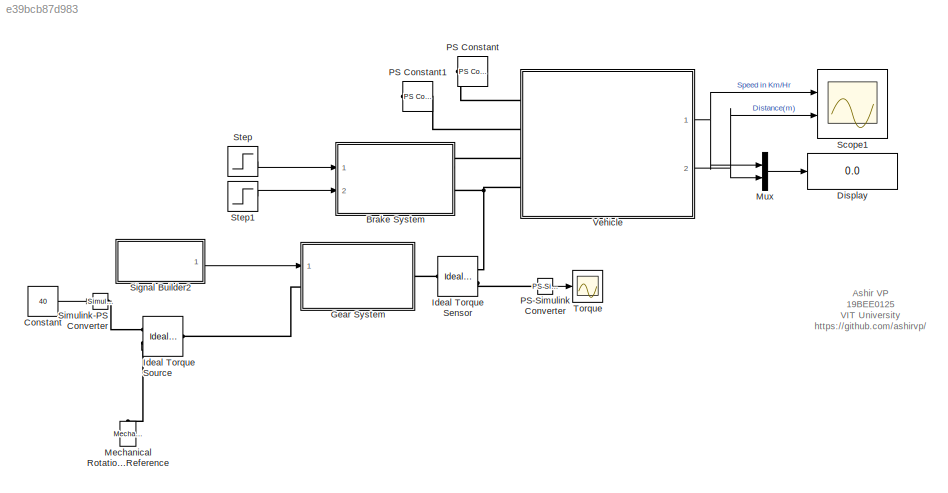
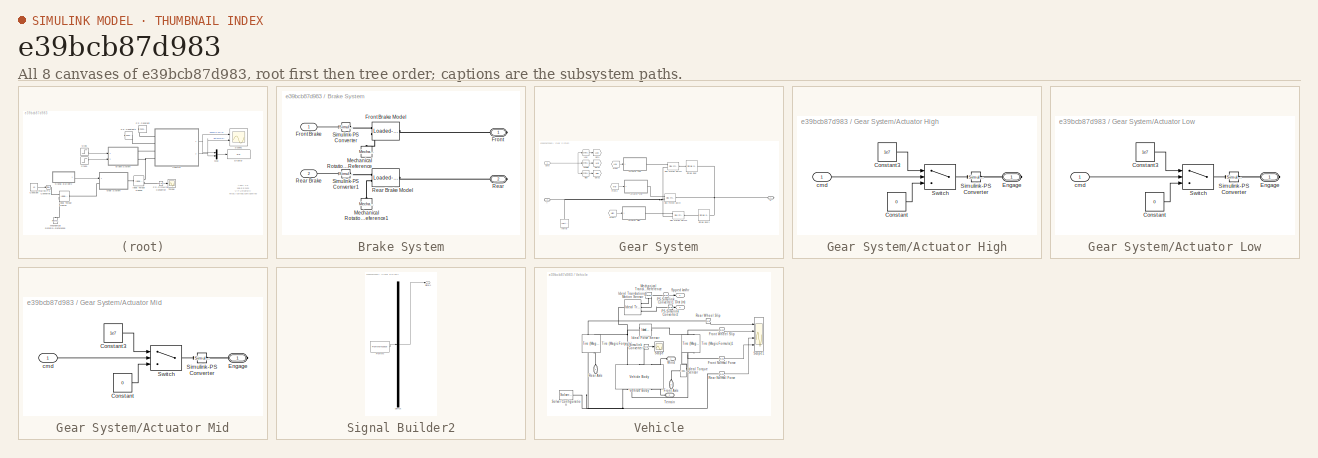
[diagram: thumbnail index - all 8 canvases of the model, root first then tree order]
MODEL slx_e39bcb87d983
KIND model
CONFIG AbsTol = auto
CONFIG EnableMultiTasking = off
CONFIG FixedStep = auto
CONFIG MaxStep = auto
CONFIG MinStep = auto
CONFIG RelTol = 1e-3
CONFIG SampleTimeConstraint = Unconstrained
CONFIG SolverName = VariableStepAuto
CONFIG StartTime = 0.0
CONFIG StopTime = 100
BLOCK [SubSystem] Brake System
  Ports = [2, 0, 0, 0, 0, 0, 2]
  RequestExecContextInheritance = off
BLOCK [PMIOPort] Brake System/Front
  Side = Right
BLOCK [Inport] Brake System/Front Brake
BLOCK [Reference] Brake System/Front Brake Model  REF=sdl_lib/Brakes & Detents/Rotational/Loaded-Contact
Rotational Friction
  Ports = [0, 0, 0, 0, 0, 2, 1]
  SourceBlock = sdl_lib/Brakes & Detents/Rotational/Loaded-Contact\nRotational Friction
  SourceProductBaseCode = LD
  SourceType = Loaded-Contact\nRotational Friction
BLOCK [Reference] Brake System/Mechanical Rotational Reference  REF=fl_lib/Mechanical/Rotational Elements/Mechanical
Rotational Reference
  NameLocation = right
  Ports = [0, 0, 0, 0, 0, 1]
  SourceBlock = fl_lib/Mechanical/Rotational Elements/Mechanical\nRotational Reference
  SourceProductBaseCode = SS
  SourceType = Mechanical\nRotational Reference
BLOCK [Reference] Brake System/Mechanical Rotational Reference1  REF=fl_lib/Mechanical/Rotational Elements/Mechanical
Rotational Reference
  NameLocation = right
  Ports = [0, 0, 0, 0, 0, 1]
  SourceBlock = fl_lib/Mechanical/Rotational Elements/Mechanical\nRotational Reference
  SourceProductBaseCode = SS
  SourceType = Mechanical\nRotational Reference
BLOCK [PMIOPort] Brake System/Rear
  Port = 2
  Side = Right
BLOCK [Inport] Brake System/Rear Brake
  Port = 2
BLOCK [Reference] Brake System/Rear Brake Model  REF=sdl_lib/Brakes & Detents/Rotational/Loaded-Contact
Rotational Friction
  Ports = [0, 0, 0, 0, 0, 2, 1]
  SourceBlock = sdl_lib/Brakes & Detents/Rotational/Loaded-Contact\nRotational Friction
  SourceProductBaseCode = LD
  SourceType = Loaded-Contact\nRotational Friction
BLOCK [Reference] Brake System/Simulink-PS Converter  REF=nesl_utility/Simulink-PS
Converter
  Ports = [1, 0, 0, 0, 0, 0, 1]
  SourceBlock = nesl_utility/Simulink-PS\nConverter
  SourceProductBaseCode = PW,SS
  SourceType = Simulink-PS\nConverter
BLOCK [Reference] Brake System/Simulink-PS Converter1  REF=nesl_utility/Simulink-PS
Converter
  Ports = [1, 0, 0, 0, 0, 0, 1]
  SourceBlock = nesl_utility/Simulink-PS\nConverter
  SourceProductBaseCode = PW,SS
  SourceType = Simulink-PS\nConverter
BLOCK [Constant] Constant
  Value = 40
BLOCK [Display] Display
  Decimation = 1
  Ports = [1]
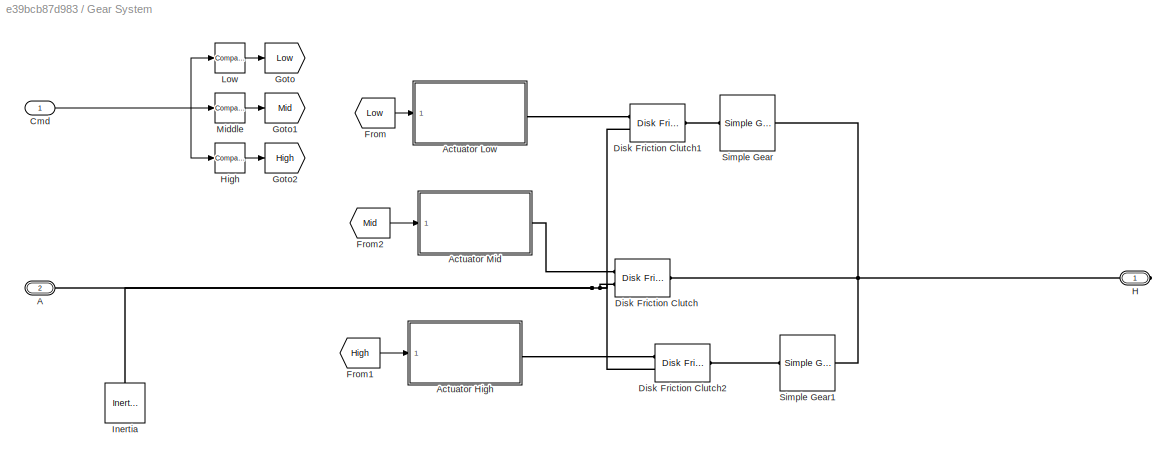
BLOCK [SubSystem] Gear System
  Ports = [1, 0, 0, 0, 0, 1, 1]
  RequestExecContextInheritance = off
BLOCK [PMIOPort] Gear System/A
  Port = 2
  Side = Left
BLOCK [SubSystem] Gear System/Actuator High
  Ports = [1, 0, 0, 0, 0, 0, 1]
  RequestExecContextInheritance = off
BLOCK [Constant] Gear System/Actuator High/Constant
  Value = 0
BLOCK [Constant] Gear System/Actuator High/Constant3
  Value = 1e7
BLOCK [PMIOPort] Gear System/Actuator High/Engage
  NameLocation = top
  Side = Right
BLOCK [Reference] Gear System/Actuator High/Simulink-PS Converter  REF=nesl_utility/Simulink-PS
Converter
  Ports = [1, 0, 0, 0, 0, 0, 1]
  SourceBlock = nesl_utility/Simulink-PS\nConverter
  SourceProductBaseCode = PW,SS
  SourceType = Simulink-PS\nConverter
BLOCK [Switch] Gear System/Actuator High/Switch
  Criteria = u2 > Threshold
  InputSameDT = off
  SaturateOnIntegerOverflow = off
BLOCK [Inport] Gear System/Actuator High/cmd
BLOCK [SubSystem] Gear System/Actuator Low
  Ports = [1, 0, 0, 0, 0, 0, 1]
  RequestExecContextInheritance = off
BLOCK [Constant] Gear System/Actuator Low/Constant
  Value = 0
BLOCK [Constant] Gear System/Actuator Low/Constant3
  Value = 1e7
BLOCK [PMIOPort] Gear System/Actuator Low/Engage
  NameLocation = top
  Side = Right
BLOCK [Reference] Gear System/Actuator Low/Simulink-PS Converter  REF=nesl_utility/Simulink-PS
Converter
  Ports = [1, 0, 0, 0, 0, 0, 1]
  SourceBlock = nesl_utility/Simulink-PS\nConverter
  SourceProductBaseCode = PW,SS
  SourceType = Simulink-PS\nConverter
BLOCK [Switch] Gear System/Actuator Low/Switch
  Criteria = u2 > Threshold
  InputSameDT = off
  SaturateOnIntegerOverflow = off
BLOCK [Inport] Gear System/Actuator Low/cmd
BLOCK [SubSystem] Gear System/Actuator Mid
  Ports = [1, 0, 0, 0, 0, 0, 1]
  RequestExecContextInheritance = off
BLOCK [Constant] Gear System/Actuator Mid/Constant
  Value = 0
BLOCK [Constant] Gear System/Actuator Mid/Constant3
  Value = 1e7
BLOCK [PMIOPort] Gear System/Actuator Mid/Engage
  NameLocation = top
  Side = Right
BLOCK [Reference] Gear System/Actuator Mid/Simulink-PS Converter  REF=nesl_utility/Simulink-PS
Converter
  Ports = [1, 0, 0, 0, 0, 0, 1]
  SourceBlock = nesl_utility/Simulink-PS\nConverter
  SourceProductBaseCode = PW,SS
  SourceType = Simulink-PS\nConverter
BLOCK [Switch] Gear System/Actuator Mid/Switch
  Criteria = u2 > Threshold
  InputSameDT = off
  SaturateOnIntegerOverflow = off
BLOCK [Inport] Gear System/Actuator Mid/cmd
BLOCK [Inport] Gear System/Cmd
BLOCK [Reference] Gear System/Disk Friction Clutch  REF=sdl_lib/Clutches/Disk Friction Clutch
  NameLocation = top
  Ports = [0, 0, 0, 0, 0, 2, 1]
  SourceBlock = sdl_lib/Clutches/Disk Friction Clutch
  SourceProductBaseCode = LD
  SourceType = Disk Friction Clutch
BLOCK [Reference] Gear System/Disk Friction Clutch1  REF=sdl_lib/Clutches/Disk Friction Clutch
  Ports = [0, 0, 0, 0, 0, 2, 1]
  SourceBlock = sdl_lib/Clutches/Disk Friction Clutch
  SourceProductBaseCode = LD
  SourceType = Disk Friction Clutch
BLOCK [Reference] Gear System/Disk Friction Clutch2  REF=sdl_lib/Clutches/Disk Friction Clutch
  Ports = [0, 0, 0, 0, 0, 2, 1]
  SourceBlock = sdl_lib/Clutches/Disk Friction Clutch
  SourceProductBaseCode = LD
  SourceType = Disk Friction Clutch
BLOCK [From] Gear System/From
  GotoTag = Low
BLOCK [From] Gear System/From1
  GotoTag = High
BLOCK [From] Gear System/From2
  GotoTag = Mid
BLOCK [Goto] Gear System/Goto
  GotoTag = Low
BLOCK [Goto] Gear System/Goto1
  GotoTag = Mid
BLOCK [Goto] Gear System/Goto2
  GotoTag = High
BLOCK [PMIOPort] Gear System/H
  Side = Right
BLOCK [Reference] Gear System/High  REF=simulink/Logic and Bit
Operations/Compare
To Constant
  Ports = [1, 1]
  SourceBlock = simulink/Logic and Bit\nOperations/Compare\nTo Constant
  SourceProductBaseCode = SL
  SourceType = Compare To Constant
BLOCK [Reference] Gear System/Inertia  REF=fl_lib/Mechanical/Rotational Elements/Inertia
  NameLocation = right
  Ports = [0, 0, 0, 0, 0, 1]
  SourceBlock = fl_lib/Mechanical/Rotational Elements/Inertia
  SourceProductBaseCode = SS
  SourceType = Inertia
BLOCK [Reference] Gear System/Low  REF=simulink/Logic and Bit
Operations/Compare
To Constant
  Ports = [1, 1]
  SourceBlock = simulink/Logic and Bit\nOperations/Compare\nTo Constant
  SourceProductBaseCode = SL
  SourceType = Compare To Constant
BLOCK [Reference] Gear System/Middle  REF=simulink/Logic and Bit
Operations/Compare
To Constant
  Ports = [1, 1]
  SourceBlock = simulink/Logic and Bit\nOperations/Compare\nTo Constant
  SourceProductBaseCode = SL
  SourceType = Compare To Constant
BLOCK [Reference] Gear System/Simple Gear  REF=sdl_lib/Gears/Simple Gear
  Ports = [0, 0, 0, 0, 0, 1, 1]
  SourceBlock = sdl_lib/Gears/Simple Gear
  SourceProductBaseCode = LD
  SourceType = Simple Gear
BLOCK [Reference] Gear System/Simple Gear1  REF=sdl_lib/Gears/Simple Gear
  Ports = [0, 0, 0, 0, 0, 1, 1]
  SourceBlock = sdl_lib/Gears/Simple Gear
  SourceProductBaseCode = LD
  SourceType = Simple Gear
BLOCK [Reference] Ideal Torque Sensor  REF=fl_lib/Mechanical/Mechanical Sensors/Ideal Torque Sensor
  Ports = [0, 0, 0, 0, 0, 1, 2]
  SourceBlock = fl_lib/Mechanical/Mechanical Sensors/Ideal Torque Sensor
  SourceProductBaseCode = SS
  SourceType = Ideal Torque Sensor
BLOCK [Reference] Ideal Torque Source  REF=fl_lib/Mechanical/Mechanical Sources/Ideal Torque Source
  Ports = [0, 0, 0, 0, 0, 1, 2]
  SourceBlock = fl_lib/Mechanical/Mechanical Sources/Ideal Torque Source
  SourceProductBaseCode = SS
  SourceType = Ideal Torque Source
BLOCK [Reference] Mechanical Rotational Reference  REF=fl_lib/Mechanical/Rotational Elements/Mechanical
Rotational Reference
  NameLocation = right
  Ports = [0, 0, 0, 0, 0, 1]
  SourceBlock = fl_lib/Mechanical/Rotational Elements/Mechanical\nRotational Reference
  SourceProductBaseCode = SS
  SourceType = Mechanical\nRotational Reference
BLOCK [Mux] Mux
  DisplayOption = bar
  Inputs = 2
  Ports = [2, 1]
BLOCK [Reference] PS Constant  REF=fl_lib/Physical Signals/Sources/PS Constant
  NameLocation = top
  Ports = [0, 0, 0, 0, 0, 0, 1]
  SourceBlock = fl_lib/Physical Signals/Sources/PS Constant
  SourceProductBaseCode = SS
  SourceType = PS Constant
BLOCK [Reference] PS Constant1  REF=fl_lib/Physical Signals/Sources/PS Constant
  NameLocation = top
  Ports = [0, 0, 0, 0, 0, 0, 1]
  SourceBlock = fl_lib/Physical Signals/Sources/PS Constant
  SourceProductBaseCode = SS
  SourceType = PS Constant
BLOCK [Reference] PS-Simulink Converter  REF=nesl_utility/PS-Simulink
Converter
  Ports = [0, 1, 0, 0, 0, 1]
  SourceBlock = nesl_utility/PS-Simulink\nConverter
  SourceProductBaseCode = PW,SS
  SourceType = PS-Simulink\nConverter
BLOCK [Scope] Scope1
  Floating = off
  NumInputPorts = 2
  Ports = [2]
  ScopeSpecificationString = Simulink.scopes.TimeScopeBlockCfg('CurrentConfiguration', extmgr.ConfigurationSet(extmgr.Configuration('Core','General UI',true,'FigureColor',[1 1 1]),extmgr.Configuration('Core','Source UI',true),extmgr.Configuration('Sources','WiredSimulink',true,'DataLoggingVariableName','ScopeData1'),extmgr.Configuration('Visuals','Time Domain',true,'SerializedDisplays',{struct('MinYLimReal','-5.79864','MaxYLi...<+3114ch>
BLOCK [SubSystem] Signal Builder2
  ClipboardFcn = sigbuilder_block('clipboard');
  CloseFcn = sigbuilder_block('close');
  ContinueFcn = sigbuilder_block('continue');
  CopyFcn = sigbuilder_block('copy');
  DeleteFcn = sigbuilder_block('delete');
  LoadFcn = sigbuilder_block('load');
  MaskHideContents = on
  ModelCloseFcn = sigbuilder_block('modelClose');
  NameChangeFcn = sigbuilder_block('namechange');
  OpenFcn = sigbuilder_block('open',[437.6 153 550.4 359.25 ]);
  PauseFcn = sigbuilder_block('pause');
  Ports = [0, 1]
  PreSaveFcn = sigbuilder_block('preSave');
  RequestExecContextInheritance = off
  StartFcn = sigbuilder_block('start');
  StopFcn = sigbuilder_block('stop');
  Tag = STV Subsys
BLOCK [Demux] Signal Builder2/Demux
  DisplayOption = none
  Outputs = 1
  Ports = [1, 1]
  Tag = STV Demux
BLOCK [FromWorkspace] Signal Builder2/FromWs
  Tag = STV FromWs
  VariableName = tuvar
BLOCK [Outport] Signal Builder2/Signal 1
  Tag = STV Outport
BLOCK [Reference] Simulink-PS Converter  REF=nesl_utility/Simulink-PS
Converter
  Ports = [1, 0, 0, 0, 0, 0, 1]
  SourceBlock = nesl_utility/Simulink-PS\nConverter
  SourceProductBaseCode = PW,SS
  SourceType = Simulink-PS\nConverter
BLOCK [Step] Step
  After = 100
  SampleTime = 0
  Time = 75
BLOCK [Step] Step1
  After = 200
  SampleTime = 0
  Time = 50
BLOCK [Scope] Torque
  Floating = off
  NumInputPorts = 1
  Ports = [1]
  ScopeSpecificationString = Simulink.scopes.TimeScopeBlockCfg('CurrentConfiguration', extmgr.ConfigurationSet(extmgr.Configuration('Core','General UI',true,'FigureColor',[1 1 1]),extmgr.Configuration('Core','Source UI',true),extmgr.Configuration('Sources','WiredSimulink',true,'DataLoggingVariableName','ScopeData1'),extmgr.Configuration('Visuals','Time Domain',true,'SerializedDisplays',{struct('MinYLimReal','-2827.47173','Max...<+1530ch>
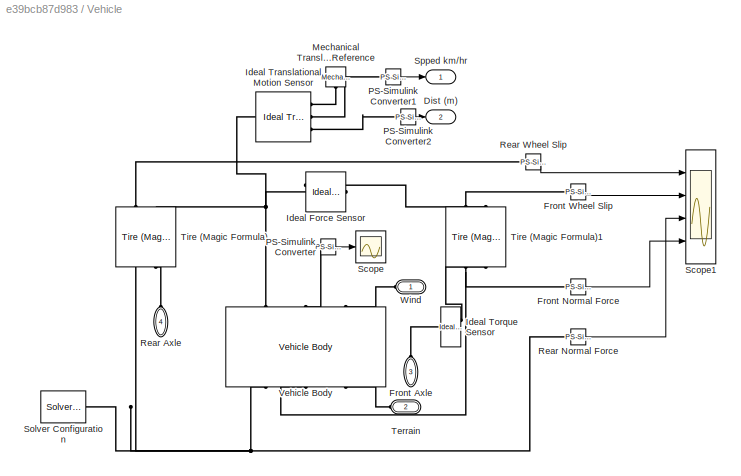
BLOCK [SubSystem] Vehicle
  Ports = [0, 2, 0, 0, 0, 4]
  RequestExecContextInheritance = off
BLOCK [Outport] Vehicle/Dist (m)
  Port = 2
BLOCK [PMIOPort] Vehicle/Front Axle
  NameLocation = right
  Port = 3
  Side = Left
BLOCK [Reference] Vehicle/Front Normal Force  REF=nesl_utility/PS-Simulink
Converter
  Ports = [0, 1, 0, 0, 0, 1]
  SourceBlock = nesl_utility/PS-Simulink\nConverter
  SourceProductBaseCode = PW,SS
  SourceType = PS-Simulink\nConverter
BLOCK [Reference] Vehicle/Front Wheel Slip  REF=nesl_utility/PS-Simulink
Converter
  Ports = [0, 1, 0, 0, 0, 1]
  SourceBlock = nesl_utility/PS-Simulink\nConverter
  SourceProductBaseCode = PW,SS
  SourceType = PS-Simulink\nConverter
BLOCK [Reference] Vehicle/Ideal Force Sensor  REF=fl_lib/Mechanical/Mechanical Sensors/Ideal Force Sensor
  NameLocation = top
  Ports = [0, 0, 0, 0, 0, 1, 2]
  SourceBlock = fl_lib/Mechanical/Mechanical Sensors/Ideal Force Sensor
  SourceProductBaseCode = SS
  SourceType = Ideal Force Sensor
BLOCK [Reference] Vehicle/Ideal Torque Sensor  REF=fl_lib/Mechanical/Mechanical Sensors/Ideal Torque Sensor
  Ports = [0, 0, 0, 0, 0, 1, 2]
  SourceBlock = fl_lib/Mechanical/Mechanical Sensors/Ideal Torque Sensor
  SourceProductBaseCode = SS
  SourceType = Ideal Torque Sensor
BLOCK [Reference] Vehicle/Ideal Translational Motion Sensor  REF=fl_lib/Mechanical/Mechanical Sensors/Ideal Translational
Motion Sensor
  Ports = [0, 0, 0, 0, 0, 1, 3]
  SourceBlock = fl_lib/Mechanical/Mechanical Sensors/Ideal Translational\nMotion Sensor
  SourceProductBaseCode = SS
  SourceType = Ideal Translational\nMotion Sensor
BLOCK [Reference] Vehicle/Mechanical Translational Reference  REF=fl_lib/Mechanical/Translational
Elements/Mechanical
Translational
Reference
  NameLocation = left
  Ports = [0, 0, 0, 0, 0, 1]
  SourceBlock = fl_lib/Mechanical/Translational\nElements/Mechanical\nTranslational\nReference
  SourceProductBaseCode = SS
  SourceType = Mechanical\nTranslational\nReference
BLOCK [Reference] Vehicle/PS-Simulink Converter  REF=nesl_utility/PS-Simulink
Converter
  Ports = [0, 1, 0, 0, 0, 1]
  SourceBlock = nesl_utility/PS-Simulink\nConverter
  SourceProductBaseCode = PW,SS
  SourceType = PS-Simulink\nConverter
BLOCK [Reference] Vehicle/PS-Simulink Converter1  REF=nesl_utility/PS-Simulink
Converter
  Ports = [0, 1, 0, 0, 0, 1]
  SourceBlock = nesl_utility/PS-Simulink\nConverter
  SourceProductBaseCode = PW,SS
  SourceType = PS-Simulink\nConverter
BLOCK [Reference] Vehicle/PS-Simulink Converter2  REF=nesl_utility/PS-Simulink
Converter
  Ports = [0, 1, 0, 0, 0, 1]
  SourceBlock = nesl_utility/PS-Simulink\nConverter
  SourceProductBaseCode = PW,SS
  SourceType = PS-Simulink\nConverter
BLOCK [PMIOPort] Vehicle/Rear Axle
  NameLocation = right
  Port = 4
  Side = Left
BLOCK [Reference] Vehicle/Rear Normal Force  REF=nesl_utility/PS-Simulink
Converter
  Ports = [0, 1, 0, 0, 0, 1]
  SourceBlock = nesl_utility/PS-Simulink\nConverter
  SourceProductBaseCode = PW,SS
  SourceType = PS-Simulink\nConverter
BLOCK [Reference] Vehicle/Rear Wheel Slip  REF=nesl_utility/PS-Simulink
Converter
  Ports = [0, 1, 0, 0, 0, 1]
  SourceBlock = nesl_utility/PS-Simulink\nConverter
  SourceProductBaseCode = PW,SS
  SourceType = PS-Simulink\nConverter
BLOCK [Scope] Vehicle/Scope
  Floating = off
  NumInputPorts = 1
  Ports = [1]
  ScopeSpecificationString = Simulink.scopes.TimeScopeBlockCfg('CurrentConfiguration', extmgr.ConfigurationSet(extmgr.Configuration('Core','General UI',true,'FigureColor',[1 1 1]),extmgr.Configuration('Core','Source UI',true),extmgr.Configuration('Sources','WiredSimulink',true),extmgr.Configuration('Visuals','Time Domain',true,'SerializedDisplays',{struct('MinYLimReal','-2.82567','MaxYLimReal','25.43104','YLabelReal','','MinY...<+1511ch>
BLOCK [Scope] Vehicle/Scope1
  Floating = off
  NumInputPorts = 4
  Ports = [4]
  ScopeSpecificationString = Simulink.scopes.TimeScopeBlockCfg('CurrentConfiguration', extmgr.ConfigurationSet(extmgr.Configuration('Core','General UI',true,'FigureColor',[1 1 1]),extmgr.Configuration('Core','Source UI',true),extmgr.Configuration('Sources','WiredSimulink',true,'DataLoggingVariableName','ScopeData2'),extmgr.Configuration('Visuals','Time Domain',true,'SerializedDisplays',{struct('MinYLimReal','-0.00071','MaxYLi...<+6463ch>
BLOCK [Reference] Vehicle/Solver Configuration  REF=nesl_utility/Solver
Configuration
  Ports = [0, 0, 0, 0, 0, 0, 1]
  SourceBlock = nesl_utility/Solver\nConfiguration
  SourceProductBaseCode = PW,SS
  SourceType = Solver\nConfiguration
BLOCK [Outport] Vehicle/Spped km//hr
BLOCK [PMIOPort] Vehicle/Terrain 
  Port = 2
  Side = Left
BLOCK [Reference] Vehicle/Tire (Magic Formula)  REF=sdl_lib/Tires & Vehicles/Tire (Magic Formula)
  NameLocation = right
  Ports = [0, 0, 0, 0, 0, 2, 2]
  SourceBlock = sdl_lib/Tires & Vehicles/Tire (Magic Formula)
  SourceProductBaseCode = LD
  SourceType = Tire (Magic Formula)
BLOCK [Reference] Vehicle/Tire (Magic Formula)1  REF=sdl_lib/Tires & Vehicles/Tire (Magic Formula)
  NameLocation = right
  Ports = [0, 0, 0, 0, 0, 2, 2]
  SourceBlock = sdl_lib/Tires & Vehicles/Tire (Magic Formula)
  SourceProductBaseCode = LD
  SourceType = Tire (Magic Formula)
BLOCK [Reference] Vehicle/Vehicle Body  REF=sdl_lib/Tires & Vehicles/Vehicle Body
  NameLocation = right
  Ports = [0, 0, 0, 0, 0, 3, 3]
  SourceBlock = sdl_lib/Tires & Vehicles/Vehicle Body
  SourceProductBaseCode = LD
  SourceType = Vehicle Body
BLOCK [PMIOPort] Vehicle/Wind
  Side = Left
ANNOTATION (root): Ashir VP 19BEE0125 VIT University https://github.com/ashirvp/
LINE Brake System/Front Brake:1 -> Brake System/Simulink-PS Converter:1
LINE Brake System/Rear Brake:1 -> Brake System/Simulink-PS Converter1:1
LINE Constant:1 -> Simulink-PS Converter:1
LINE Gear System/Actuator High/Constant3:1 -> Gear System/Actuator High/Switch:1
LINE Gear System/Actuator High/Constant:1 -> Gear System/Actuator High/Switch:3
LINE Gear System/Actuator High/Switch:1 -> Gear System/Actuator High/Simulink-PS Converter:1
LINE Gear System/Actuator High/cmd:1 -> Gear System/Actuator High/Switch:2
LINE Gear System/Actuator Low/Constant3:1 -> Gear System/Actuator Low/Switch:1
LINE Gear System/Actuator Low/Constant:1 -> Gear System/Actuator Low/Switch:3
LINE Gear System/Actuator Low/Switch:1 -> Gear System/Actuator Low/Simulink-PS Converter:1
LINE Gear System/Actuator Low/cmd:1 -> Gear System/Actuator Low/Switch:2
LINE Gear System/Actuator Mid/Constant3:1 -> Gear System/Actuator Mid/Switch:1
LINE Gear System/Actuator Mid/Constant:1 -> Gear System/Actuator Mid/Switch:3
LINE Gear System/Actuator Mid/Switch:1 -> Gear System/Actuator Mid/Simulink-PS Converter:1
LINE Gear System/Actuator Mid/cmd:1 -> Gear System/Actuator Mid/Switch:2
NET Gear System/Cmd:1 -> Gear System/High:1, Gear System/Low:1, Gear System/Middle:1
LINE Gear System/From1:1 -> Gear System/Actuator High:1
LINE Gear System/From2:1 -> Gear System/Actuator Mid:1
LINE Gear System/From:1 -> Gear System/Actuator Low:1
LINE Gear System/High:1 -> Gear System/Goto2:1
LINE Gear System/Low:1 -> Gear System/Goto:1
LINE Gear System/Middle:1 -> Gear System/Goto1:1
LINE Mux:1 -> Display:1
LINE PS-Simulink Converter:1 -> Torque:1
LINE Signal Builder2:1 -> Gear System:1
LINE Step1:1 -> Brake System:2
LINE Step:1 -> Brake System:1
LINE Vehicle/Front Normal Force:1 -> Vehicle/Scope1:4
LINE Vehicle/Front Wheel Slip:1 -> Vehicle/Scope1:2
LINE Vehicle/PS-Simulink Converter1:1 -> Vehicle/Spped km//hr:1
LINE Vehicle/PS-Simulink Converter2:1 -> Vehicle/Dist (m):1
LINE Vehicle/PS-Simulink Converter:1 -> Vehicle/Scope:1
LINE Vehicle/Rear Normal Force:1 -> Vehicle/Scope1:3
LINE Vehicle/Rear Wheel Slip:1 -> Vehicle/Scope1:1
NET Vehicle:1 -> Mux:1, Scope1:1
NET Vehicle:2 -> Mux:2, Scope1:2
PLINE Brake System/Front Brake Model:LConn1 -- Brake System/Simulink-PS Converter:RConn1
PLINE Brake System/Front Brake Model:LConn2 -- Brake System/Mechanical Rotational Reference:LConn1
PLINE Brake System/Front Brake Model:RConn1 -- Brake System/Front:RConn1
PLINE Brake System/Mechanical Rotational Reference1:LConn1 -- Brake System/Rear Brake Model:LConn2
PLINE Brake System/Rear Brake Model:LConn1 -- Brake System/Simulink-PS Converter1:RConn1
PLINE Brake System/Rear Brake Model:RConn1 -- Brake System/Rear:RConn1
PLINE Brake System:RConn1 -- Vehicle:LConn3
PNET net1: Brake System:RConn2 -- Ideal Torque Sensor:RConn1 -- Vehicle:LConn4
PNET net2: Gear System/A:RConn1 -- Gear System/Disk Friction Clutch1:LConn2 -- Gear System/Disk Friction Clutch2:LConn2 -- Gear System/Disk Friction Clutch:LConn2 -- Gear System/Inertia:LConn1
PLINE Gear System/Actuator High/Engage:RConn1 -- Gear System/Actuator High/Simulink-PS Converter:RConn1
PLINE Gear System/Actuator High:RConn1 -- Gear System/Disk Friction Clutch2:LConn1
PLINE Gear System/Actuator Low/Engage:RConn1 -- Gear System/Actuator Low/Simulink-PS Converter:RConn1
PLINE Gear System/Actuator Low:RConn1 -- Gear System/Disk Friction Clutch1:LConn1
PLINE Gear System/Actuator Mid/Engage:RConn1 -- Gear System/Actuator Mid/Simulink-PS Converter:RConn1
PLINE Gear System/Actuator Mid:RConn1 -- Gear System/Disk Friction Clutch:LConn1
PLINE Gear System/Disk Friction Clutch1:RConn1 -- Gear System/Simple Gear:LConn1
PLINE Gear System/Disk Friction Clutch2:RConn1 -- Gear System/Simple Gear1:LConn1
PNET net3: Gear System/Disk Friction Clutch:RConn1 -- Gear System/H:RConn1 -- Gear System/Simple Gear1:RConn1 -- Gear System/Simple Gear:RConn1
PLINE Gear System:LConn1 -- Ideal Torque Source:LConn1
PLINE Gear System:RConn1 -- Ideal Torque Sensor:LConn1
PLINE Ideal Torque Sensor:RConn2 -- PS-Simulink Converter:LConn1
PLINE Ideal Torque Source:RConn1 -- Simulink-PS Converter:RConn1
PLINE Ideal Torque Source:RConn2 -- Mechanical Rotational Reference:LConn1
PLINE PS Constant1:RConn1 -- Vehicle:LConn2
PLINE PS Constant:RConn1 -- Vehicle:LConn1
PLINE Vehicle/Front Axle:RConn1 -- Vehicle/Ideal Torque Sensor:LConn1
PNET net4: Vehicle/Front Normal Force:LConn1 -- Vehicle/Tire (Magic Formula)1:LConn1 -- Vehicle/Vehicle Body:RConn2
PLINE Vehicle/Front Wheel Slip:LConn1 -- Vehicle/Tire (Magic Formula)1:RConn1
PNET net5: Vehicle/Ideal Force Sensor:LConn1 -- Vehicle/Ideal Translational Motion Sensor:LConn1 -- Vehicle/Tire (Magic Formula):RConn2 -- Vehicle/Vehicle Body:LConn1
PLINE Vehicle/Ideal Force Sensor:RConn1 -- Vehicle/Tire (Magic Formula)1:RConn2
PLINE Vehicle/Ideal Torque Sensor:RConn1 -- Vehicle/Tire (Magic Formula)1:LConn2
PLINE Vehicle/Ideal Translational Motion Sensor:RConn1 -- Vehicle/Mechanical Translational Reference:LConn1
PLINE Vehicle/Ideal Translational Motion Sensor:RConn2 -- Vehicle/PS-Simulink Converter1:LConn1
PLINE Vehicle/Ideal Translational Motion Sensor:RConn3 -- Vehicle/PS-Simulink Converter2:LConn1
PLINE Vehicle/PS-Simulink Converter:LConn1 -- Vehicle/Vehicle Body:LConn2
PLINE Vehicle/Rear Axle:RConn1 -- Vehicle/Tire (Magic Formula):LConn2
PNET net6: Vehicle/Rear Normal Force:LConn1 -- Vehicle/Solver Configuration:RConn1 -- Vehicle/Tire (Magic Formula):LConn1 -- Vehicle/Vehicle Body:RConn1
PLINE Vehicle/Rear Wheel Slip:LConn1 -- Vehicle/Tire (Magic Formula):RConn1
PLINE Vehicle/Terrain :RConn1 -- Vehicle/Vehicle Body:RConn3
PLINE Vehicle/Vehicle Body:LConn3 -- Vehicle/Wind:RConn1
note: NET lines group one-source signal fan-out (src -> all destinations, sorted); 1:1 wires keep LINE; PNET lines group multi-terminal physical nets as a canonical sorted terminal list (undirected conserving connections); 2-terminal nets keep the pairwise PLINE form
